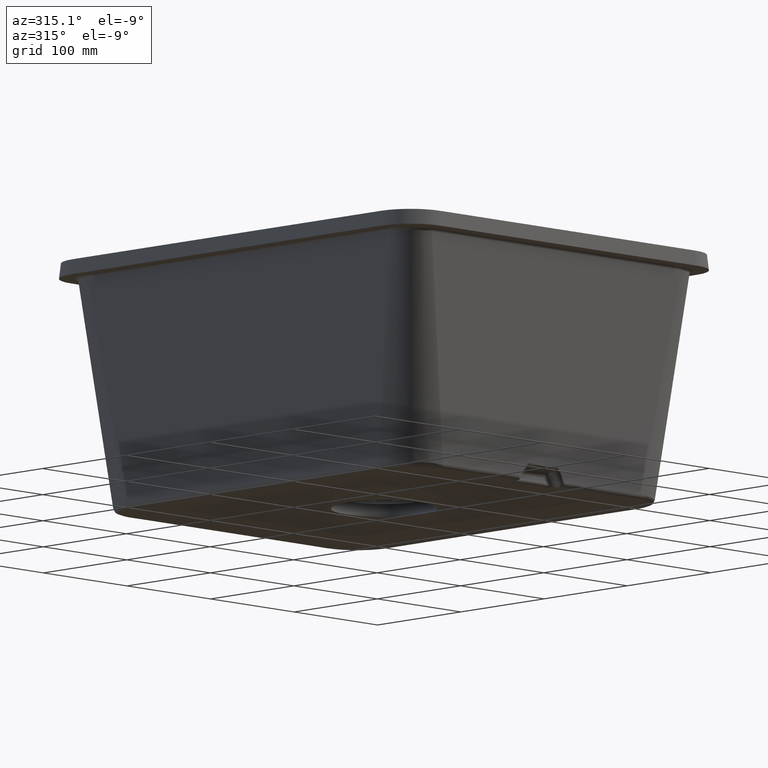
[diagram: clean part render]
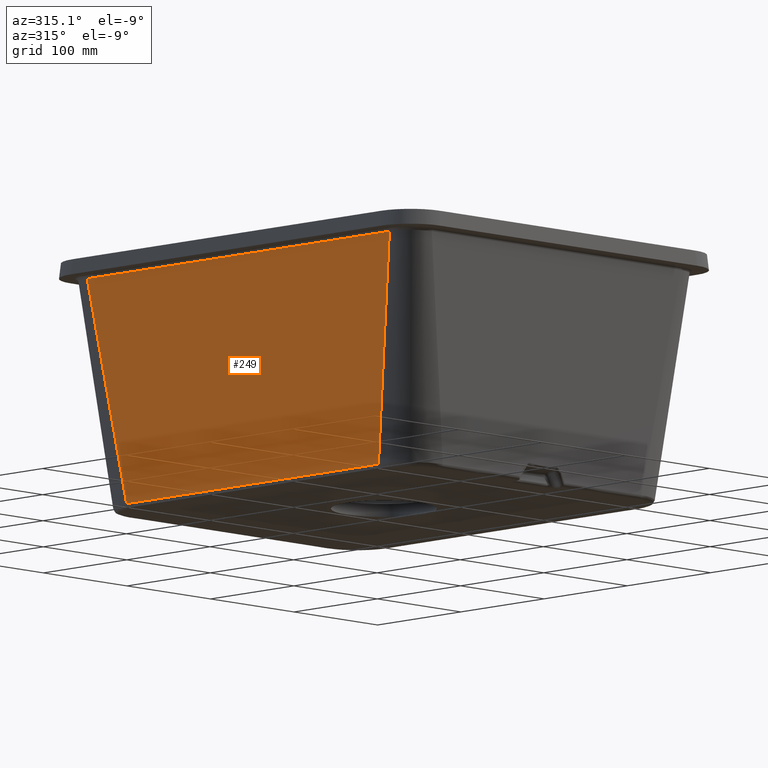
[diagram: same view with one face highlighted and labeled with its STEP entity id]
A machine part, auxiliary view. The second image highlights one B-rep face of the part: STEP entity #249.
In plain terms, the highlighted planar face has unit normal (-0.9962, -0, -0.0872).
Its self-contained STEP definition (entity closure, byte-faithful):
#64=PLANE('',#1415);
#249=ADVANCED_FACE('',(#373),#64,.T.);
#373=FACE_OUTER_BOUND('',#465,.T.);
#465=EDGE_LOOP('',(#876,#877,#878,#879,#880,#881));
#876=ORIENTED_EDGE('',*,*,#1222,.T.);
#877=ORIENTED_EDGE('',*,*,#1218,.T.);
#878=ORIENTED_EDGE('',*,*,#1219,.T.);
#879=ORIENTED_EDGE('',*,*,#1220,.T.);
#880=ORIENTED_EDGE('',*,*,#1221,.T.);
#881=ORIENTED_EDGE('',*,*,#1223,.T.);
#1022=VERTEX_POINT('',#4025);
#1024=VERTEX_POINT('',#4101);
#1025=VERTEX_POINT('',#4177);
#1026=VERTEX_POINT('',#4243);
#1028=VERTEX_POINT('',#4343);
#1029=VERTEX_POINT('',#4408);
#1218=EDGE_CURVE('',#1025,#1022,#1328,.T.);
#1219=EDGE_CURVE('',#1022,#1028,#1329,.T.);
#1220=EDGE_CURVE('',#1028,#1024,#1330,.T.);
#1221=EDGE_CURVE('',#1024,#1026,#1331,.T.);
#1222=EDGE_CURVE('',#1029,#1025,#1332,.T.);
#1223=EDGE_CURVE('',#1026,#1029,#1333,.T.);
#1328=B_SPLINE_CURVE_WITH_KNOTS('',3,(#4328,#4329,#4330,#4331,#4332,#4333,
#4334,#4335,#4336,#4337),.UNSPECIFIED.,.F.,.F.,(4,2,2,2,4),(0.,0.0165302464765797,
0.0826512323828991,0.347135176008177,1.),.UNSPECIFIED.);
#1329=B_SPLINE_CURVE_WITH_KNOTS('',3,(#4339,#4340,#4341,#4342),
 .UNSPECIFIED.,.F.,.F.,(4,4),(0.,1.),.UNSPECIFIED.);
#1330=B_SPLINE_CURVE_WITH_KNOTS('',3,(#4344,#4345,#4346,#4347),
 .UNSPECIFIED.,.F.,.F.,(4,4),(0.,1.),.UNSPECIFIED.);
#1331=B_SPLINE_CURVE_WITH_KNOTS('',3,(#4388,#4389,#4390,#4391),
 .UNSPECIFIED.,.F.,.F.,(4,4),(0.,1.),.UNSPECIFIED.);
#1332=B_SPLINE_CURVE_WITH_KNOTS('',3,(#4404,#4405,#4406,#4407),
 .UNSPECIFIED.,.F.,.F.,(4,4),(0.,1.),.UNSPECIFIED.);
#1333=B_SPLINE_CURVE_WITH_KNOTS('',3,(#4409,#4410,#4411,#4412),
 .UNSPECIFIED.,.F.,.F.,(4,4),(0.,1.),.UNSPECIFIED.);
#1415=AXIS2_PLACEMENT_3D('',#4453,#1586,#1587);
#1586=DIRECTION('',(-0.996194698091746,-7.08973263353181E-17,-0.0871557427476581));
#1587=DIRECTION('',(0.0871557427476581,0.,-0.996194698091746));
#4025=CARTESIAN_POINT('',(-174.47662521934,-27.5145028500735,-15.738532771757));
#4101=CARTESIAN_POINT('',(-157.450399016057,-57.7146056864487,-210.349188793919));
#4177=CARTESIAN_POINT('',(-174.47662521934,-390.485497172562,-15.738532771757));
#4243=CARTESIAN_POINT('',(-157.45038783727,-360.285374696363,-210.34931656804));
#4328=CARTESIAN_POINT('',(-174.47662521934,-390.485497172562,-15.738532771757));
#4329=CARTESIAN_POINT('',(-174.47662521934,-388.485497172562,-15.738532771757));
#4330=CARTESIAN_POINT('',(-174.47662521934,-386.485497172562,-15.738532771757));
#4331=CARTESIAN_POINT('',(-174.47662521934,-376.485497172562,-15.738532771757));
#4332=CARTESIAN_POINT('',(-174.47662521934,-368.485497172562,-15.738532771757));
#4333=CARTESIAN_POINT('',(-174.47662521934,-328.485497172562,-15.738532771757));
#4334=CARTESIAN_POINT('',(-174.47662521934,-296.485497172562,-15.738532771757));
#4335=CARTESIAN_POINT('',(-174.47662521934,-185.495165731733,-15.738532771757));
#4336=CARTESIAN_POINT('',(-174.47662521934,-106.504834290903,-15.738532771757));
#4337=CARTESIAN_POINT('',(-174.47662521934,-27.5145028500735,-15.738532771757));
#4339=CARTESIAN_POINT('',(-174.47662521934,-27.5145028500735,-15.738532771757));
#4340=CARTESIAN_POINT('',(-170.118299503399,-35.2450406242302,-65.5544236574227));
#4341=CARTESIAN_POINT('',(-165.759973787459,-42.975578398387,-115.370314543089));
#4342=CARTESIAN_POINT('',(-161.401648071519,-50.7061161725437,-165.186205428754));
#4343=CARTESIAN_POINT('',(-161.401648071519,-50.7061161725437,-165.186205428754));
#4344=CARTESIAN_POINT('',(-161.401648071519,-50.7061161725437,-165.186205428754));
#4345=CARTESIAN_POINT('',(-160.084565053032,-53.0422793438453,-180.240533217142));
#4346=CARTESIAN_POINT('',(-158.767482034545,-55.378442515147,-195.294861005531));
#4347=CARTESIAN_POINT('',(-157.450399016057,-57.7146056864487,-210.349188793919));
#4388=CARTESIAN_POINT('',(-157.450399016058,-57.7146056864487,-210.349188793919));
#4389=CARTESIAN_POINT('',(-157.450534043004,-156.554496235247,-210.347645428858));
#4390=CARTESIAN_POINT('',(-157.450530316742,-257.411419238552,-210.347688020231));
#4391=CARTESIAN_POINT('',(-157.450387837271,-360.285374696363,-210.34931656804));
#4404=CARTESIAN_POINT('',(-161.401648072329,-367.293883996238,-165.1862054195));
#4405=CARTESIAN_POINT('',(-165.759973787999,-375.024421721679,-115.370314536919));
#4406=CARTESIAN_POINT('',(-170.118299503669,-382.754959447121,-65.554423654338));
#4407=CARTESIAN_POINT('',(-174.47662521934,-390.485497172562,-15.738532771757));
#4408=CARTESIAN_POINT('',(-161.401648072329,-367.293883996238,-165.1862054195));
#4409=CARTESIAN_POINT('',(-157.45038783727,-360.285374696363,-210.349316568039));
#4410=CARTESIAN_POINT('',(-158.76747458229,-362.621544462988,-195.294946185193));
#4411=CARTESIAN_POINT('',(-160.084561327309,-364.957714229613,-180.240575802346));
#4412=CARTESIAN_POINT('',(-161.401648072329,-367.293883996238,-165.1862054195));
#4453=CARTESIAN_POINT('',(-176.446725773285,-404.,6.77981960153279));